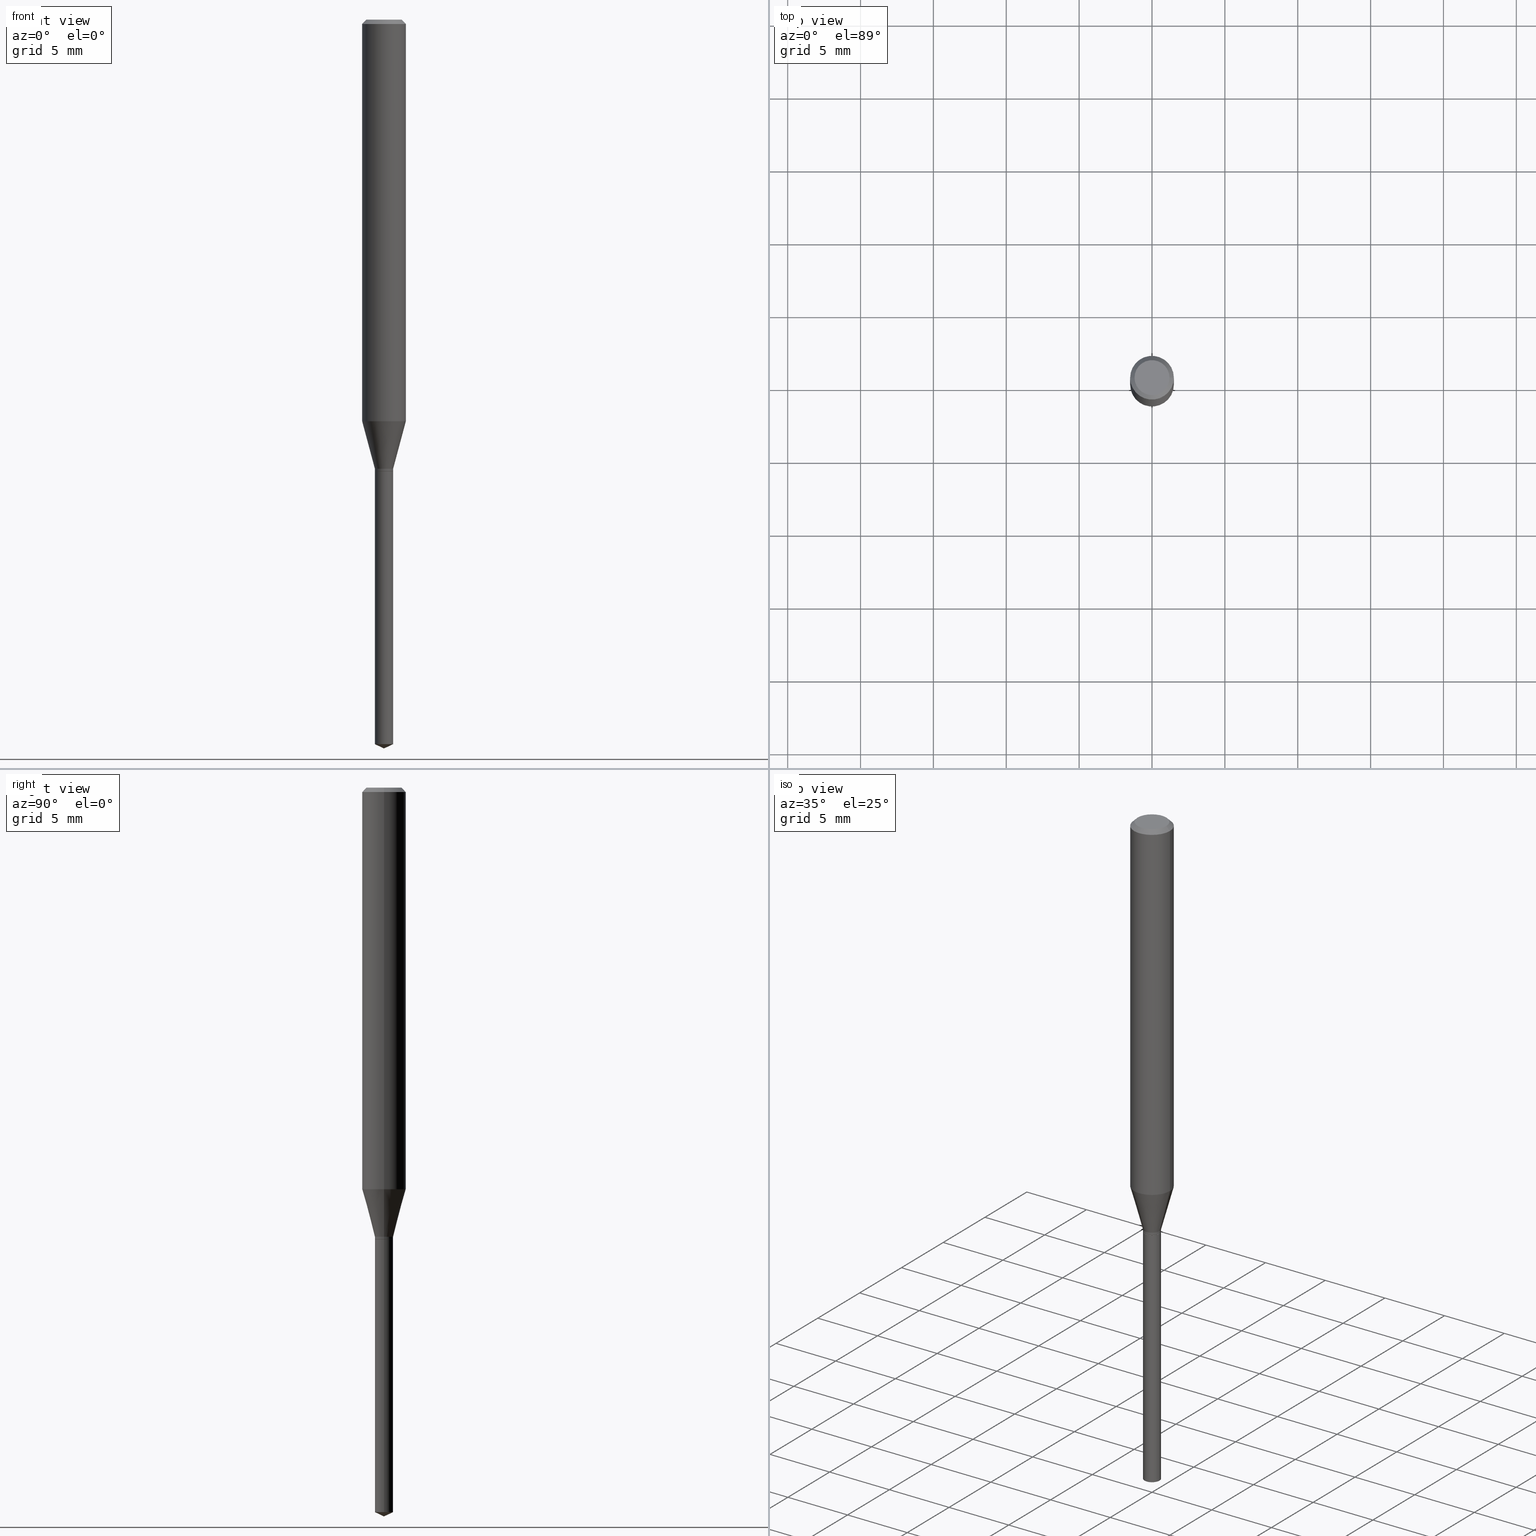
[diagram: canonical four-view strip — front | top / right | iso, engineering-drawing reading convention]
A machine part, canonical four-view strip (front | top / right | iso — engineering-drawing reading convention). The complete STEP part file that produces these views, byte-faithful:
ISO-10303-21;
HEADER;
FILE_DESCRIPTION (( 'STEP AP203' ),
    '1' );
FILE_NAME ('08157.STEP',
    '2024-04-24T13:25:48',
    ( '' ),
    ( '' ),
    'SwSTEP 2.0',
    'SolidWorks 2023',
    '' );
FILE_SCHEMA (( 'CONFIG_CONTROL_DESIGN' ));
ENDSEC;

DATA;
#1 = CARTESIAN_POINT ( 'NONE',  ( -9.146317137672921654E-28, 1.305851684738629534E-13, 37.40107874015748024 ) ) ;
#2 = LOCAL_TIME ( 9, 25, 48.00000000000000000, #206 ) ;
#3 = EDGE_CURVE ( 'NONE', #80, #181, #101, .T. ) ;
#4 = AXIS2_PLACEMENT_3D ( 'NONE', #317, #131, #209 ) ;
#5 = VECTOR ( 'NONE', #180, 39.37007874015747433 ) ;
#6 = EDGE_LOOP ( 'NONE', ( #225, #253, #186, #478 ) ) ;
#7 = LINE ( 'NONE', #452, #308 ) ;
#8 = CC_DESIGN_DATE_AND_TIME_ASSIGNMENT ( #56, #285, ( #230 ) ) ;
#9 = APPLICATION_CONTEXT ( 'configuration controlled 3d designs of mechanical parts and assemblies' ) ;
#10 = DIRECTION ( 'NONE',  ( -2.445468806185136597E-29, 3.491481338843145583E-15, 1.000000000000000000 ) ) ;
#11 = EDGE_CURVE ( 'NONE', #179, #45, #183, .T. ) ;
#12 =( CONVERSION_BASED_UNIT ( 'INCH', #200 ) LENGTH_UNIT ( ) NAMED_UNIT ( #91 ) );
#13 = AXIS2_PLACEMENT_3D ( 'NONE', #270, #376, #332 ) ;
#14 = ADVANCED_BREP_SHAPE_REPRESENTATION ( '08157', ( #199, #34, #293 ), #233 ) ;
#15 = APPROVAL ( #282, 'UNSPECIFIED' ) ;
#16 = PERSON_AND_ORGANIZATION_ROLE ( 'classification_officer' ) ;
#17 = CARTESIAN_POINT ( 'NONE',  ( 2.984694677948959472E-29, -4.261352974058059816E-15, -1.220500000000000140 ) ) ;
#18 = DIRECTION ( 'NONE',  ( -2.445468806185136597E-29, 3.491481338843145583E-15, 1.000000000000000000 ) ) ;
#19 = COORDINATED_UNIVERSAL_TIME_OFFSET ( 5, 0, .BEHIND. ) ;
#20 = CARTESIAN_POINT ( 'NONE',  ( 2.985917412352052273E-29, -4.263098714727481320E-15, -1.221000000000000085 ) ) ;
#21 = ORIENTED_EDGE ( 'NONE', *, *, #109, .T. ) ;
#22 = VECTOR ( 'NONE', #484, 39.37007874015748143 ) ;
#23 = APPROVAL_DATE_TIME ( #435, #90 ) ;
#24 = FACE_OUTER_BOUND ( 'NONE', #6, .T. ) ;
#25 = CARTESIAN_POINT ( 'NONE',  ( 4.132873053354867254E-48, -5.900647395337818946E-34, -1.690012582823346072E-19 ) ) ;
#26 = ADVANCED_FACE ( 'NONE', ( #284 ), #110, .T. ) ;
#27 = CYLINDRICAL_SURFACE ( 'NONE', #352, 0.05905000000000006771 ) ;
#28 = VECTOR ( 'NONE', #204, 39.37007874015747433 ) ;
#29 = AXIS2_PLACEMENT_3D ( 'NONE', #44, #280, #343 ) ;
#30 = CARTESIAN_POINT ( 'NONE',  ( 0.000000000000000000, 0.000000000000000000, 0.000000000000000000 ) ) ;
#31 = CARTESIAN_POINT ( 'NONE',  ( -0.05905000000000000526, 3.711095515056362547E-16, -0.01181000000000007738 ) ) ;
#32 = EDGE_LOOP ( 'NONE', ( #151, #490, #221 ) ) ;
#33 = CARTESIAN_POINT ( 'NONE',  ( 0.02460000000000001422, -4.409042634691123752E-15, -1.213600000000000012 ) ) ;
#34 = MANIFOLD_SOLID_BREP ( 'Body-Move/Copy2[2]', #279 ) ;
#35 = CC_DESIGN_PERSON_AND_ORGANIZATION_ASSIGNMENT ( #244, #125, ( #230 ) ) ;
#36 = ORIENTED_EDGE ( 'NONE', *, *, #394, .F. ) ;
#37 = VECTOR ( 'NONE', #364, 39.37007874015748854 ) ;
#38 = DIRECTION ( 'NONE',  ( -2.445468806185136597E-29, 3.491481338843145583E-15, 1.000000000000000000 ) ) ;
#39 = VECTOR ( 'NONE', #382, 39.37007874015748143 ) ;
#40 = CC_DESIGN_APPROVAL ( #381, ( #309 ) ) ;
#41 = VERTEX_POINT ( 'NONE', #468 ) ;
#42 = LINE ( 'NONE', #193, #213 ) ;
#43 = EDGE_LOOP ( 'NONE', ( #472, #155, #367, #449 ) ) ;
#44 = CARTESIAN_POINT ( 'NONE',  ( 2.985917412352052273E-29, -4.263098714727481320E-15, -1.221000000000000085 ) ) ;
#45 = VERTEX_POINT ( 'NONE', #357 ) ;
#46 = FACE_OUTER_BOUND ( 'NONE', #115, .T. ) ;
#47 = CC_DESIGN_DATE_AND_TIME_ASSIGNMENT ( #359, #167, ( #309 ) ) ;
#48 = AXIS2_PLACEMENT_3D ( 'NONE', #198, #242, #152 ) ;
#49 = DIRECTION ( 'NONE',  ( -2.445468806185136877E-29, 3.491481338843145188E-15, 1.000000000000000000 ) ) ;
#50 = EDGE_CURVE ( 'NONE', #77, #133, #62, .T. ) ;
#51 = APPROVAL_STATUS ( 'not_yet_approved' ) ;
#52 = CALENDAR_DATE ( 2024, 24, 4 ) ;
#53 = VECTOR ( 'NONE', #177, 39.37007874015748854 ) ;
#54 = APPROVAL_ROLE ( '' ) ;
#55 = DIRECTION ( 'NONE',  ( -0.7071067811865353603, 7.493145998870309984E-15, 0.7071067811865595631 ) ) ;
#56 = DATE_AND_TIME ( #52, #249 ) ;
#57 = CARTESIAN_POINT ( 'NONE',  ( -0.05905000000000000526, -1.495224193701643913E-15, -0.01181000000000007738 ) ) ;
#58 = ORIENTED_EDGE ( 'NONE', *, *, #399, .F. ) ;
#59 =( NAMED_UNIT ( * ) PLANE_ANGLE_UNIT ( ) SI_UNIT ( $, .RADIAN. ) );
#60 = LINE ( 'NONE', #395, #437 ) ;
#61 = VERTEX_POINT ( 'NONE', #464 ) ;
#62 = CIRCLE ( 'NONE', #457, 0.05905000000000013710 ) ;
#63 = AXIS2_PLACEMENT_3D ( 'NONE', #489, #150, #420 ) ;
#64 = DIRECTION ( 'NONE',  ( 1.000000000000000000, -6.982962677686266711E-15, 4.876185090822587894E-29 ) ) ;
#65 = EDGE_LOOP ( 'NONE', ( #296, #119, #446, #175 ) ) ;
#66 = CARTESIAN_POINT ( 'NONE',  ( 2.985917412352052273E-29, -4.263098714727481320E-15, -1.221000000000000085 ) ) ;
#67 = DIRECTION ( 'NONE',  ( 0.7071067811865453523, -7.319954787623248157E-15, -0.7071067811865496822 ) ) ;
#68 = ORIENTED_EDGE ( 'NONE', *, *, #165, .F. ) ;
#69 = EDGE_CURVE ( 'NONE', #181, #77, #434, .T. ) ;
#70 = AXIS2_PLACEMENT_3D ( 'NONE', #444, #112, #374 ) ;
#71 = DIRECTION ( 'NONE',  ( 1.000000000000000000, -6.982962677686276966E-15, 0.000000000000000000 ) ) ;
#72 = CC_DESIGN_SECURITY_CLASSIFICATION ( #309, ( #184 ) ) ;
#73 = VERTEX_POINT ( 'NONE', #423 ) ;
#74 = LINE ( 'NONE', #33, #5 ) ;
#75 = ORIENTED_EDGE ( 'NONE', *, *, #84, .T. ) ;
#76 = DIRECTION ( 'NONE',  ( -2.445468806185136597E-29, 3.491481338843145583E-15, 1.000000000000000000 ) ) ;
#77 = VERTEX_POINT ( 'NONE', #314 ) ;
#78 = CONICAL_SURFACE ( 'NONE', #4, 0.02460000000000001422, 0.2617993877991500740 ) ;
#79 = DIRECTION ( 'NONE',  ( -2.445468806185136877E-29, 3.491481338843145188E-15, 1.000000000000000000 ) ) ;
#80 = VERTEX_POINT ( 'NONE', #252 ) ;
#81 = EDGE_CURVE ( 'NONE', #77, #117, #60, .T. ) ;
#82 = LINE ( 'NONE', #236, #39 ) ;
#83 = ORIENTED_EDGE ( 'NONE', *, *, #134, .T. ) ;
#84 = EDGE_CURVE ( 'NONE', #415, #80, #356, .T. ) ;
#85 = CARTESIAN_POINT ( 'NONE',  ( 0.02460000000000001769, -1.717808818710822867E-16, 1.199539486845800937E-30 ) ) ;
#86 = CYLINDRICAL_SURFACE ( 'NONE', #48, 0.02460000000000000034 ) ;
#87 = AXIS2_PLACEMENT_3D ( 'NONE', #25, #126, #286 ) ;
#88 = AXIS2_PLACEMENT_3D ( 'NONE', #326, #105, #143 ) ;
#89 = FACE_OUTER_BOUND ( 'NONE', #263, .T. ) ;
#90 = APPROVAL ( #283, 'UNSPECIFIED' ) ;
#91 = DIMENSIONAL_EXPONENTS ( 1.000000000000000000, 0.000000000000000000, 0.000000000000000000, 0.000000000000000000, 0.000000000000000000, 0.000000000000000000, 0.000000000000000000 ) ;
#92 = MECHANICAL_CONTEXT ( 'NONE', #305, 'mechanical' ) ;
#93 = DIRECTION ( 'NONE',  ( -2.445468806185136597E-29, 3.491481338843145583E-15, 1.000000000000000000 ) ) ;
#94 = DIRECTION ( 'NONE',  ( -1.000000000000000000, 6.982962677686267499E-15, 0.000000000000000000 ) ) ;
#95 = DIRECTION ( 'NONE',  ( 1.000000000000000000, -6.982962677686264344E-15, 0.000000000000000000 ) ) ;
#96 = PERSON_AND_ORGANIZATION_ROLE ( 'design_supplier' ) ;
#97 = CARTESIAN_POINT ( 'NONE',  ( 2.985917412352052273E-29, -4.263098714727481320E-15, -1.221000000000000085 ) ) ;
#98 = UNCERTAINTY_MEASURE_WITH_UNIT (LENGTH_MEASURE( 1.000000000000000082E-05 ), #12, 'distance_accuracy_value', 'NONE');
#99 = ORIENTED_EDGE ( 'NONE', *, *, #391, .T. ) ;
#100 = PERSON_AND_ORGANIZATION_ROLE ( 'creator' ) ;
#101 = LINE ( 'NONE', #163, #407 ) ;
#102 = EDGE_CURVE ( 'NONE', #181, #365, #330, .T. ) ;
#103 = CIRCLE ( 'NONE', #400, 0.05905000000000013710 ) ;
#104 = CARTESIAN_POINT ( 'NONE',  ( 0.02409999999999999989, -4.431388115259720575E-15, -1.221000000000000085 ) ) ;
#105 = DIRECTION ( 'NONE',  ( -2.445468806185136597E-29, 3.491481338843145583E-15, 1.000000000000000000 ) ) ;
#106 = ORIENTED_EDGE ( 'NONE', *, *, #267, .F. ) ;
#107 = DIRECTION ( 'NONE',  ( -2.445468806185136597E-29, 3.491481338843145583E-15, 1.000000000000000000 ) ) ;
#108 = EDGE_LOOP ( 'NONE', ( #172, #451, #396, #417 ) ) ;
#109 = EDGE_CURVE ( 'NONE', #300, #41, #426, .T. ) ;
#110 = CONICAL_SURFACE ( 'NONE', #385, 0.05905000000000000526, 0.7853981633974452814 ) ;
#111 = AXIS2_PLACEMENT_3D ( 'NONE', #306, #277, #275 ) ;
#112 = DIRECTION ( 'NONE',  ( -2.445468806185136597E-29, 3.491481338843145583E-15, 1.000000000000000000 ) ) ;
#113 = PRODUCT_DEFINITION_SHAPE ( 'NONE', 'NONE',  #230 ) ;
#114 = CARTESIAN_POINT ( 'NONE',  ( 4.815128079378533515E-29, -6.874726756182153211E-15, -1.968999999999999861 ) ) ;
#115 = EDGE_LOOP ( 'NONE', ( #235, #375, #256, #370 ) ) ;
#116 = EDGE_CURVE ( 'NONE', #218, #231, #445, .T. ) ;
#117 = VERTEX_POINT ( 'NONE', #57 ) ;
#118 = FACE_OUTER_BOUND ( 'NONE', #333, .T. ) ;
#119 = ORIENTED_EDGE ( 'NONE', *, *, #50, .T. ) ;
#120 = FACE_OUTER_BOUND ( 'NONE', #324, .T. ) ;
#121 = EDGE_CURVE ( 'NONE', #61, #321, #220, .T. ) ;
#122 = CARTESIAN_POINT ( 'NONE',  ( 2.985917412352052273E-29, -4.263098714727481320E-15, -1.221000000000000085 ) ) ;
#123 = AXIS2_PLACEMENT_3D ( 'NONE', #190, #157, #311 ) ;
#124 = AXIS2_PLACEMENT_3D ( 'NONE', #292, #173, #71 ) ;
#125 = PERSON_AND_ORGANIZATION_ROLE ( 'creator' ) ;
#126 = DIRECTION ( 'NONE',  ( 2.438088387897960049E-29, -3.491481338843145188E-15, -1.000000000000000000 ) ) ;
#127 = PERSON_AND_ORGANIZATION ( #327, #422 ) ;
#128 = CARTESIAN_POINT ( 'NONE',  ( 4.787075694908793597E-29, -6.834675385811602288E-15, -1.957528831609387288 ) ) ;
#129 = ADVANCED_FACE ( 'NONE', ( #24 ), #78, .T. ) ;
#130 = APPLICATION_PROTOCOL_DEFINITION ( 'international standard', 'config_control_design', 1994, #9 ) ;
#131 = DIRECTION ( 'NONE',  ( -2.445468806185136597E-29, 3.491481338843145583E-15, 1.000000000000000000 ) ) ;
#132 = DIRECTION ( 'NONE',  ( -2.445468806185136597E-29, 3.491481338843145583E-15, 1.000000000000000000 ) ) ;
#133 = VERTEX_POINT ( 'NONE', #461 ) ;
#134 = EDGE_CURVE ( 'NONE', #300, #415, #351, .T. ) ;
#135 = CARTESIAN_POINT ( 'NONE',  ( 0.02409999999999999989, -4.431388115259720575E-15, -1.221000000000000085 ) ) ;
#136 = ADVANCED_FACE ( 'NONE', ( #318 ), #398, .F. ) ;
#137 = CARTESIAN_POINT ( 'NONE',  ( 0.02460000000000000034, -4.434879596598563582E-15, -1.221000000000000085 ) ) ;
#138 = CIRCLE ( 'NONE', #203, 0.02460000000000001769 ) ;
#139 = CONICAL_SURFACE ( 'NONE', #428, 0.02409999999999999989, 0.7853981633974311816 ) ;
#140 = FACE_OUTER_BOUND ( 'NONE', #346, .T. ) ;
#141 = ORIENTED_EDGE ( 'NONE', *, *, #197, .T. ) ;
#142 = CARTESIAN_POINT ( 'NONE',  ( -0.02460000000000000034, -5.374093537272557476E-15, -1.221000000000000085 ) ) ;
#143 = DIRECTION ( 'NONE',  ( 1.000000000000000000, -6.982962677686261977E-15, 0.000000000000000000 ) ) ;
#144 = ORIENTED_EDGE ( 'NONE', *, *, #480, .F. ) ;
#145 = CC_DESIGN_PERSON_AND_ORGANIZATION_ASSIGNMENT ( #208, #100, ( #184 ) ) ;
#146 = AXIS2_PLACEMENT_3D ( 'NONE', #348, #455, #379 ) ;
#147 = CARTESIAN_POINT ( 'NONE',  ( 2.653409096639165019E-29, -3.788364963724230266E-15, -1.085030849679252007 ) ) ;
#148 = FACE_OUTER_BOUND ( 'NONE', #486, .T. ) ;
#149 = ORIENTED_EDGE ( 'NONE', *, *, #288, .T. ) ;
#150 = DIRECTION ( 'NONE',  ( -2.445468806185136597E-29, 3.491481338843145583E-15, 1.000000000000000000 ) ) ;
#151 = ORIENTED_EDGE ( 'NONE', *, *, #187, .F. ) ;
#152 = DIRECTION ( 'NONE',  ( 1.000000000000000000, -6.982962677686281699E-15, 0.000000000000000000 ) ) ;
#153 = VECTOR ( 'NONE', #49, 39.37007874015748143 ) ;
#154 = ADVANCED_FACE ( 'NONE', ( #212 ), #360, .T. ) ;
#155 = ORIENTED_EDGE ( 'NONE', *, *, #3, .T. ) ;
#156 = FACE_OUTER_BOUND ( 'NONE', #215, .T. ) ;
#157 = DIRECTION ( 'NONE',  ( -2.445468806185136597E-29, 3.491481338843145583E-15, 1.000000000000000000 ) ) ;
#158 = AXIS2_PLACEMENT_3D ( 'NONE', #487, #278, #421 ) ;
#159 = DIRECTION ( 'NONE',  ( 0.000000000000000000, 0.000000000000000000, 1.000000000000000000 ) ) ;
#160 = DIRECTION ( 'NONE',  ( -2.445468806185136597E-29, 3.491481338843145583E-15, 1.000000000000000000 ) ) ;
#161 = DIRECTION ( 'NONE',  ( 1.000000000000000000, -6.982962677686261977E-15, 0.000000000000000000 ) ) ;
#162 = SECURITY_CLASSIFICATION_LEVEL ( 'unclassified' ) ;
#163 = CARTESIAN_POINT ( 'NONE',  ( -0.02460000000000001769, 1.747935129969847714E-16, -1.210058032202707759E-30 ) ) ;
#164 = VECTOR ( 'NONE', #55, 39.37007874015748854 ) ;
#165 = EDGE_CURVE ( 'NONE', #80, #41, #138, .T. ) ;
#166 = AXIS2_PLACEMENT_3D ( 'NONE', #1, #310, #238 ) ;
#167 = DATE_TIME_ROLE ( 'classification_date' ) ;
#168 = DIRECTION ( 'NONE',  ( -2.445468806185136597E-29, 3.491481338843145583E-15, 1.000000000000000000 ) ) ;
#169 = ORIENTED_EDGE ( 'NONE', *, *, #50, .F. ) ;
#170 = CC_DESIGN_PERSON_AND_ORGANIZATION_ASSIGNMENT ( #388, #96, ( #184 ) ) ;
#171 = CYLINDRICAL_SURFACE ( 'NONE', #369, 0.05905000000000006771 ) ;
#172 = ORIENTED_EDGE ( 'NONE', *, *, #210, .T. ) ;
#173 = DIRECTION ( 'NONE',  ( -2.445468806185136597E-29, 3.491481338843145583E-15, 1.000000000000000000 ) ) ;
#174 = LINE ( 'NONE', #114, #53 ) ;
#175 = ORIENTED_EDGE ( 'NONE', *, *, #288, .F. ) ;
#176 = DATE_AND_TIME ( #325, #223 ) ;
#177 = DIRECTION ( 'NONE',  ( 0.9063077870366547106, -4.853149677051446632E-15, 0.4226182617406894493 ) ) ;
#178 = CC_DESIGN_PERSON_AND_ORGANIZATION_ASSIGNMENT ( #127, #389, ( #217 ) ) ;
#179 = VERTEX_POINT ( 'NONE', #463 ) ;
#180 = DIRECTION ( 'NONE',  ( 0.2588190451025213501, 1.565188264969621968E-15, 0.9659258262890682012 ) ) ;
#181 = VERTEX_POINT ( 'NONE', #473 ) ;
#182 = EDGE_CURVE ( 'NONE', #321, #117, #368, .T. ) ;
#183 = CIRCLE ( 'NONE', #192, 0.02460000000000000034 ) ;
#184 = PRODUCT_DEFINITION_FORMATION_WITH_SPECIFIED_SOURCE ( 'ANY', '', #217, .NOT_KNOWN. ) ;
#185 = CARTESIAN_POINT ( 'NONE',  ( 0.000000000000000000, 0.000000000000000000, 0.000000000000000000 ) ) ;
#186 = ORIENTED_EDGE ( 'NONE', *, *, #210, .F. ) ;
#187 = EDGE_CURVE ( 'NONE', #189, #179, #174, .T. ) ;
#188 = CYLINDRICAL_SURFACE ( 'NONE', #123, 0.02460000000000001769 ) ;
#189 = VERTEX_POINT ( 'NONE', #229 ) ;
#190 = CARTESIAN_POINT ( 'NONE',  ( 0.000000000000000000, 0.000000000000000000, 0.000000000000000000 ) ) ;
#191 = ORIENTED_EDGE ( 'NONE', *, *, #109, .F. ) ;
#192 = AXIS2_PLACEMENT_3D ( 'NONE', #128, #132, #431 ) ;
#193 = CARTESIAN_POINT ( 'NONE',  ( 4.815128079378533515E-29, -6.874726756182153211E-15, -1.968999999999999861 ) ) ;
#194 = AXIS2_PLACEMENT_3D ( 'NONE', #262, #481, #264 ) ;
#195 = DESIGN_CONTEXT ( 'detailed design', #9, 'design' ) ;
#196 = CC_DESIGN_APPROVAL ( #90, ( #230 ) ) ;
#197 = EDGE_CURVE ( 'NONE', #321, #61, #458, .T. ) ;
#198 = CARTESIAN_POINT ( 'NONE',  ( 2.985917412352051713E-29, -4.263098714727481320E-15, -1.221000000000000085 ) ) ;
#199 = MANIFOLD_SOLID_BREP ( 'Body-Move/Copy2[1]', #336 ) ;
#200 = LENGTH_MEASURE_WITH_UNIT ( LENGTH_MEASURE( 0.02539999999999999897 ), #397 );
#201 = EDGE_CURVE ( 'NONE', #133, #73, #224, .T. ) ;
#202 = COORDINATED_UNIVERSAL_TIME_OFFSET ( 5, 0, .BEHIND. ) ;
#203 = AXIS2_PLACEMENT_3D ( 'NONE', #17, #160, #316 ) ;
#204 = DIRECTION ( 'NONE',  ( -0.2588190451025213501, 5.211531920934551042E-15, 0.9659258262890682012 ) ) ;
#205 = APPROVAL_PERSON_ORGANIZATION ( #392, #90, #54 ) ;
#206 = COORDINATED_UNIVERSAL_TIME_OFFSET ( 5, 0, .BEHIND. ) ;
#207 = DIRECTION ( 'NONE',  ( -2.445468806185136597E-29, 3.491481338843145583E-15, 1.000000000000000000 ) ) ;
#208 = PERSON_AND_ORGANIZATION ( #327, #422 ) ;
#209 = DIRECTION ( 'NONE',  ( 1.000000000000000000, -6.982962677686277755E-15, 0.000000000000000000 ) ) ;
#210 = EDGE_CURVE ( 'NONE', #133, #77, #103, .T. ) ;
#211 = CALENDAR_DATE ( 2024, 24, 4 ) ;
#212 = FACE_OUTER_BOUND ( 'NONE', #276, .T. ) ;
#213 = VECTOR ( 'NONE', #234, 39.37007874015748854 ) ;
#214 = CARTESIAN_POINT ( 'NONE',  ( 2.653409096639165019E-29, -3.788364963724230266E-15, -1.085030849679252007 ) ) ;
#215 = EDGE_LOOP ( 'NONE', ( #265, #419, #21, #68 ) ) ;
#216 = DIRECTION ( 'NONE',  ( -1.000000000000000000, 6.982962677686265922E-15, -4.876176775795935793E-29 ) ) ;
#217 = PRODUCT ( '08157', '08157', '', ( #92 ) ) ;
#218 = VERTEX_POINT ( 'NONE', #137 ) ;
#219 = PLANE ( 'NONE',  #453 ) ;
#220 = CIRCLE ( 'NONE', #232, 0.04724000000000000421 ) ;
#221 = ORIENTED_EDGE ( 'NONE', *, *, #11, .F. ) ;
#222 = CIRCLE ( 'NONE', #88, 0.02460000000000000034 ) ;
#223 = LOCAL_TIME ( 9, 25, 48.00000000000000000, #363 ) ;
#224 = LINE ( 'NONE', #413, #22 ) ;
#225 = ORIENTED_EDGE ( 'NONE', *, *, #424, .T. ) ;
#226 = DIRECTION ( 'NONE',  ( -0.7071067811865453523, 2.468850131082234184E-15, -0.7071067811865496822 ) ) ;
#227 = ADVANCED_FACE ( 'NONE', ( #403 ), #171, .T. ) ;
#228 = ORIENTED_EDGE ( 'NONE', *, *, #441, .T. ) ;
#229 = CARTESIAN_POINT ( 'NONE',  ( 4.815128079378533515E-29, -6.874726756182153211E-15, -1.968999999999999861 ) ) ;
#230 = PRODUCT_DEFINITION ( 'UNKNOWN', '', #184, #195 ) ;
#231 = VERTEX_POINT ( 'NONE', #142 ) ;
#232 = AXIS2_PLACEMENT_3D ( 'NONE', #255, #93, #64 ) ;
#233 =( GEOMETRIC_REPRESENTATION_CONTEXT ( 3 ) GLOBAL_UNCERTAINTY_ASSIGNED_CONTEXT ( ( #98 ) ) GLOBAL_UNIT_ASSIGNED_CONTEXT ( ( #12, #59, #462 ) ) REPRESENTATION_CONTEXT ( 'NONE', 'WORKASPACE' ) );
#234 = DIRECTION ( 'NONE',  ( -0.9063077870366547106, 7.915267918739013053E-15, 0.4226182617406894493 ) ) ;
#235 = ORIENTED_EDGE ( 'NONE', *, *, #391, .F. ) ;
#236 = CARTESIAN_POINT ( 'NONE',  ( 0.02460000000000000034, -4.434879596598563582E-15, -1.221000000000000085 ) ) ;
#237 = ORIENTED_EDGE ( 'NONE', *, *, #182, .T. ) ;
#238 = DIRECTION ( 'NONE',  ( 1.000000000000000000, -6.982962677686267499E-15, 0.000000000000000000 ) ) ;
#239 = AXIS2_PLACEMENT_3D ( 'NONE', #97, #18, #161 ) ;
#240 = DIRECTION ( 'NONE',  ( -2.438088387897960049E-29, 3.491481338843145188E-15, 1.000000000000000000 ) ) ;
#241 = EDGE_CURVE ( 'NONE', #41, #80, #274, .T. ) ;
#242 = DIRECTION ( 'NONE',  ( -2.445468806185136597E-29, 3.491481338843145583E-15, 1.000000000000000000 ) ) ;
#243 = ADVANCED_FACE ( 'NONE', ( #295 ), #27, .T. ) ;
#244 = PERSON_AND_ORGANIZATION ( #327, #422 ) ;
#245 = CARTESIAN_POINT ( 'NONE',  ( -0.02409999999999999989, -4.091857915409297102E-15, -1.221000000000000085 ) ) ;
#246 = DIRECTION ( 'NONE',  ( 1.000000000000000000, 0.000000000000000000, 0.000000000000000000 ) ) ;
#247 = DIRECTION ( 'NONE',  ( 2.445468806185136597E-29, -3.491481338843145583E-15, -1.000000000000000000 ) ) ;
#248 = AXIS2_PLACEMENT_3D ( 'NONE', #122, #240, #387 ) ;
#249 = LOCAL_TIME ( 9, 25, 48.00000000000000000, #350 ) ;
#250 = ADVANCED_FACE ( 'NONE', ( #140 ), #219, .F. ) ;
#251 = APPROVAL_DATE_TIME ( #429, #15 ) ;
#252 = CARTESIAN_POINT ( 'NONE',  ( -0.02460000000000001769, -4.074513850442065931E-15, -1.220500000000000140 ) ) ;
#253 = ORIENTED_EDGE ( 'NONE', *, *, #69, .T. ) ;
#254 = PERSON_AND_ORGANIZATION ( #327, #422 ) ;
#255 = CARTESIAN_POINT ( 'NONE',  ( 8.265746106709734507E-48, -1.180129479067563789E-33, -3.380025165646692144E-19 ) ) ;
#256 = ORIENTED_EDGE ( 'NONE', *, *, #480, .T. ) ;
#257 = DIRECTION ( 'NONE',  ( -2.445468806185136597E-29, 3.491481338843145583E-15, 1.000000000000000000 ) ) ;
#258 = CIRCLE ( 'NONE', #194, 0.05905000000000000526 ) ;
#259 = ORIENTED_EDGE ( 'NONE', *, *, #241, .F. ) ;
#260 = LINE ( 'NONE', #329, #465 ) ;
#261 = EDGE_CURVE ( 'NONE', #73, #117, #408, .T. ) ;
#262 = CARTESIAN_POINT ( 'NONE',  ( 2.888098660104665518E-31, -4.123439461173782112E-17, -0.01181000000000007738 ) ) ;
#263 = EDGE_LOOP ( 'NONE', ( #358, #99, #443, #144 ) ) ;
#264 = DIRECTION ( 'NONE',  ( 1.000000000000000000, -6.982962677686267499E-15, 0.000000000000000000 ) ) ;
#265 = ORIENTED_EDGE ( 'NONE', *, *, #84, .F. ) ;
#266 = APPROVAL_DATE_TIME ( #176, #381 ) ;
#267 = EDGE_CURVE ( 'NONE', #45, #179, #222, .T. ) ;
#268 = CARTESIAN_POINT ( 'NONE',  ( 0.000000000000000000, 0.000000000000000000, 0.000000000000000000 ) ) ;
#269 = ORIENTED_EDGE ( 'NONE', *, *, #102, .F. ) ;
#270 = CARTESIAN_POINT ( 'NONE',  ( 8.265746106709734507E-48, -1.180129479067563789E-33, -3.380025165646692144E-19 ) ) ;
#271 = EDGE_LOOP ( 'NONE', ( #83, #75, #259, #191 ) ) ;
#272 = ORIENTED_EDGE ( 'NONE', *, *, #116, .T. ) ;
#273 = VECTOR ( 'NONE', #226, 39.37007874015748143 ) ;
#274 = CIRCLE ( 'NONE', #124, 0.02460000000000001769 ) ;
#275 = DIRECTION ( 'NONE',  ( 1.000000000000000000, -6.982962677686280121E-15, 0.000000000000000000 ) ) ;
#276 = EDGE_LOOP ( 'NONE', ( #469, #304, #454, #169 ) ) ;
#277 = DIRECTION ( 'NONE',  ( -2.445468806185136597E-29, 3.491481338843145583E-15, 1.000000000000000000 ) ) ;
#278 = DIRECTION ( 'NONE',  ( -2.445468806185136597E-29, 3.491481338843145583E-15, 1.000000000000000000 ) ) ;
#279 = CLOSED_SHELL ( 'NONE', ( #342, #405, #227, #129, #432, #414, #154, #243, #26, #136, #402, #477 ) ) ;
#280 = DIRECTION ( 'NONE',  ( -2.445468806185136597E-29, 3.491481338843145583E-15, 1.000000000000000000 ) ) ;
#281 = AXIS2_PLACEMENT_3D ( 'NONE', #418, #38, #349 ) ;
#282 = APPROVAL_STATUS ( 'not_yet_approved' ) ;
#283 = APPROVAL_STATUS ( 'not_yet_approved' ) ;
#284 = FACE_OUTER_BOUND ( 'NONE', #380, .T. ) ;
#285 = DATE_TIME_ROLE ( 'creation_date' ) ;
#286 = DIRECTION ( 'NONE',  ( -1.000000000000000000, 6.982962677686265922E-15, -4.876176775795935793E-29 ) ) ;
#287 = CIRCLE ( 'NONE', #281, 0.02409999999999999989 ) ;
#288 = EDGE_CURVE ( 'NONE', #117, #73, #258, .T. ) ;
#289 = CARTESIAN_POINT ( 'NONE',  ( 2.888098660104665518E-31, -4.123439461173782112E-17, -0.01181000000000007738 ) ) ;
#290 = APPROVAL_ROLE ( '' ) ;
#291 = DIRECTION ( 'NONE',  ( 1.000000000000000000, -6.982962677686280121E-15, 0.000000000000000000 ) ) ;
#292 = CARTESIAN_POINT ( 'NONE',  ( 2.984694677948959472E-29, -4.261352974058059816E-15, -1.220500000000000140 ) ) ;
#293 = AXIS2_PLACEMENT_3D ( 'NONE', #315, #159, #246 ) ;
#294 = ORIENTED_EDGE ( 'NONE', *, *, #121, .F. ) ;
#295 = FACE_OUTER_BOUND ( 'NONE', #65, .T. ) ;
#296 = ORIENTED_EDGE ( 'NONE', *, *, #81, .F. ) ;
#297 = DIRECTION ( 'NONE',  ( 2.438088387897960049E-29, -3.491481338843145188E-15, -1.000000000000000000 ) ) ;
#298 = FACE_OUTER_BOUND ( 'NONE', #32, .T. ) ;
#299 = AXIS2_PLACEMENT_3D ( 'NONE', #20, #168, #291 ) ;
#300 = VERTEX_POINT ( 'NONE', #104 ) ;
#301 = CARTESIAN_POINT ( 'NONE',  ( -0.04724000000000000421, 3.504923541997677355E-16, -3.380025165670481712E-19 ) ) ;
#302 = ORIENTED_EDGE ( 'NONE', *, *, #377, .T. ) ;
#303 = CYLINDRICAL_SURFACE ( 'NONE', #347, 0.02460000000000001769 ) ;
#304 = ORIENTED_EDGE ( 'NONE', *, *, #102, .T. ) ;
#305 = APPLICATION_CONTEXT ( 'configuration controlled 3d designs of mechanical parts and assemblies' ) ;
#306 = CARTESIAN_POINT ( 'NONE',  ( 2.985917412352052273E-29, -4.263098714727481320E-15, -1.221000000000000085 ) ) ;
#307 = ORIENTED_EDGE ( 'NONE', *, *, #134, .F. ) ;
#308 = VECTOR ( 'NONE', #79, 39.37007874015748143 ) ;
#309 = SECURITY_CLASSIFICATION ( '', '', #162 ) ;
#310 = DIRECTION ( 'NONE',  ( -2.445468806185136597E-29, 3.491481338843145583E-15, 1.000000000000000000 ) ) ;
#311 = DIRECTION ( 'NONE',  ( 1.000000000000000000, -6.982962677686266711E-15, 4.876176775795935232E-29 ) ) ;
#312 = CYLINDRICAL_SURFACE ( 'NONE', #63, 0.02460000000000000034 ) ;
#313 = CONICAL_SURFACE ( 'NONE', #70, 84.42940631927639572, 1.134464013796325332 ) ;
#314 = CARTESIAN_POINT ( 'NONE',  ( -0.05905000000000013710, -3.368789478257890773E-15, -1.085030849679252007 ) ) ;
#315 = CARTESIAN_POINT ( 'NONE',  ( 0.000000000000000000, 0.000000000000000000, 0.000000000000000000 ) ) ;
#316 = DIRECTION ( 'NONE',  ( 1.000000000000000000, -6.982962677686276966E-15, 0.000000000000000000 ) ) ;
#317 = CARTESIAN_POINT ( 'NONE',  ( 2.967820943186281838E-29, -4.237261752820041489E-15, -1.213600000000000012 ) ) ;
#318 = FACE_OUTER_BOUND ( 'NONE', #341, .T. ) ;
#319 = CONICAL_SURFACE ( 'NONE', #111, 0.02409999999999999989, 0.7853981633974311816 ) ;
#320 = PRODUCT_RELATED_PRODUCT_CATEGORY ( 'detail', '', ( #217 ) ) ;
#321 = VERTEX_POINT ( 'NONE', #301 ) ;
#322 = PERSON_AND_ORGANIZATION ( #327, #422 ) ;
#323 = DIRECTION ( 'NONE',  ( -2.445468806185136877E-29, 3.491481338843145188E-15, 1.000000000000000000 ) ) ;
#324 = EDGE_LOOP ( 'NONE', ( #36, #338, #106 ) ) ;
#325 = CALENDAR_DATE ( 2024, 24, 4 ) ;
#326 = CARTESIAN_POINT ( 'NONE',  ( 4.787075694908793597E-29, -6.834675385811602288E-15, -1.957528831609387288 ) ) ;
#327 = PERSON ( 'UNSPECIFIED', 'UNSPECIFIED', 'UNSPECIFIED', ('UNSPECIFIED'), ('UNSPECIFIED'), ('UNSPECIFIED') ) ;
#328 = SHAPE_DEFINITION_REPRESENTATION ( #113, #14 ) ;
#329 = CARTESIAN_POINT ( 'NONE',  ( 0.05905000000000000526, -4.463468013801467941E-16, -0.01181000000000007738 ) ) ;
#330 = CIRCLE ( 'NONE', #427, 0.02460000000000001422 ) ;
#331 = CIRCLE ( 'NONE', #29, 0.02460000000000000034 ) ;
#332 = DIRECTION ( 'NONE',  ( 1.000000000000000000, -6.982962677686266711E-15, 4.876185090822587894E-29 ) ) ;
#333 = EDGE_LOOP ( 'NONE', ( #409, #439, #302, #269 ) ) ;
#334 = DIRECTION ( 'NONE',  ( -2.445468806185136597E-29, 3.491481338843145583E-15, 1.000000000000000000 ) ) ;
#335 = LINE ( 'NONE', #85, #153 ) ;
#336 = CLOSED_SHELL ( 'NONE', ( #447, #362, #483, #460, #250 ) ) ;
#337 = CONICAL_SURFACE ( 'NONE', #146, 0.05905000000000000526, 0.7853981633974452814 ) ;
#338 = ORIENTED_EDGE ( 'NONE', *, *, #187, .T. ) ;
#339 = AXIS2_PLACEMENT_3D ( 'NONE', #442, #107, #366 ) ;
#340 = PLANE ( 'NONE',  #248 ) ;
#341 = EDGE_LOOP ( 'NONE', ( #141, #482 ) ) ;
#342 = ADVANCED_FACE ( 'NONE', ( #371 ), #139, .T. ) ;
#343 = DIRECTION ( 'NONE',  ( 1.000000000000000000, -6.982962677686261977E-15, 0.000000000000000000 ) ) ;
#344 = ORIENTED_EDGE ( 'NONE', *, *, #261, .T. ) ;
#345 = FACE_OUTER_BOUND ( 'NONE', #488, .T. ) ;
#346 = EDGE_LOOP ( 'NONE', ( #272, #228 ) ) ;
#347 = AXIS2_PLACEMENT_3D ( 'NONE', #185, #10, #384 ) ;
#348 = CARTESIAN_POINT ( 'NONE',  ( 2.888098660104665518E-31, -4.123439461173782112E-17, -0.01181000000000007738 ) ) ;
#349 = DIRECTION ( 'NONE',  ( 1.000000000000000000, -6.982962677686280121E-15, 0.000000000000000000 ) ) ;
#350 = COORDINATED_UNIVERSAL_TIME_OFFSET ( 5, 0, .BEHIND. ) ;
#351 = CIRCLE ( 'NONE', #299, 0.02409999999999999989 ) ;
#352 = AXIS2_PLACEMENT_3D ( 'NONE', #30, #76, #406 ) ;
#353 = CALENDAR_DATE ( 2024, 24, 4 ) ;
#354 = DIRECTION ( 'NONE',  ( -2.445468806185136597E-29, 3.491481338843145583E-15, 1.000000000000000000 ) ) ;
#355 = EDGE_CURVE ( 'NONE', #61, #73, #260, .T. ) ;
#356 = LINE ( 'NONE', #245, #164 ) ;
#357 = CARTESIAN_POINT ( 'NONE',  ( -0.02460000000000000034, -6.659881872814617171E-15, -1.957528831609387288 ) ) ;
#358 = ORIENTED_EDGE ( 'NONE', *, *, #11, .T. ) ;
#359 = DATE_AND_TIME ( #211, #2 ) ;
#360 = CONICAL_SURFACE ( 'NONE', #416, 0.02460000000000001422, 0.2617993877991500740 ) ;
#361 = CARTESIAN_POINT ( 'NONE',  ( 2.967820943186281838E-29, -4.237261752820041489E-15, -1.213600000000000012 ) ) ;
#362 = ADVANCED_FACE ( 'NONE', ( #298 ), #313, .T. ) ;
#363 = COORDINATED_UNIVERSAL_TIME_OFFSET ( 5, 0, .BEHIND. ) ;
#364 = DIRECTION ( 'NONE',  ( 0.7071067811865353603, -2.468850131082130054E-15, 0.7071067811865595631 ) ) ;
#365 = VERTEX_POINT ( 'NONE', #411 ) ;
#366 = DIRECTION ( 'NONE',  ( 1.000000000000000000, -6.982962677686267499E-15, 0.000000000000000000 ) ) ;
#367 = ORIENTED_EDGE ( 'NONE', *, *, #424, .F. ) ;
#368 = LINE ( 'NONE', #31, #273 ) ;
#369 = AXIS2_PLACEMENT_3D ( 'NONE', #268, #440, #404 ) ;
#370 = ORIENTED_EDGE ( 'NONE', *, *, #441, .F. ) ;
#371 = FACE_OUTER_BOUND ( 'NONE', #271, .T. ) ;
#372 = EDGE_CURVE ( 'NONE', #365, #133, #74, .T. ) ;
#373 = ORIENTED_EDGE ( 'NONE', *, *, #197, .F. ) ;
#374 = DIRECTION ( 'NONE',  ( 1.000000000000000000, -6.982962677686267499E-15, 0.000000000000000000 ) ) ;
#375 = ORIENTED_EDGE ( 'NONE', *, *, #267, .T. ) ;
#376 = DIRECTION ( 'NONE',  ( -2.445468806185136597E-29, 3.491481338843145583E-15, 1.000000000000000000 ) ) ;
#377 = EDGE_CURVE ( 'NONE', #41, #365, #335, .T. ) ;
#378 = CC_DESIGN_APPROVAL ( #15, ( #184 ) ) ;
#379 = DIRECTION ( 'NONE',  ( -1.000000000000000000, 6.982962677686267499E-15, 0.000000000000000000 ) ) ;
#380 = EDGE_LOOP ( 'NONE', ( #383, #373, #237, #149 ) ) ;
#381 = APPROVAL ( #51, 'UNSPECIFIED' ) ;
#382 = DIRECTION ( 'NONE',  ( -2.445468806185136877E-29, 3.491481338843145188E-15, 1.000000000000000000 ) ) ;
#383 = ORIENTED_EDGE ( 'NONE', *, *, #355, .F. ) ;
#384 = DIRECTION ( 'NONE',  ( 1.000000000000000000, -6.982962677686266711E-15, 4.876176775795935232E-29 ) ) ;
#385 = AXIS2_PLACEMENT_3D ( 'NONE', #289, #247, #94 ) ;
#386 = CONICAL_SURFACE ( 'NONE', #166, 84.42940631927639572, 1.134464013796325332 ) ;
#387 = DIRECTION ( 'NONE',  ( 1.000000000000000000, -6.982962677686265922E-15, 4.876176775795935793E-29 ) ) ;
#388 = PERSON_AND_ORGANIZATION ( #327, #422 ) ;
#389 = PERSON_AND_ORGANIZATION_ROLE ( 'design_owner' ) ;
#390 = DIRECTION ( 'NONE',  ( 1.000000000000000000, -6.982962677686277755E-15, 0.000000000000000000 ) ) ;
#391 = EDGE_CURVE ( 'NONE', #45, #231, #7, .T. ) ;
#392 = PERSON_AND_ORGANIZATION ( #327, #422 ) ;
#393 = CARTESIAN_POINT ( 'NONE',  ( -0.02460000000000001422, -4.062468239823057162E-15, -1.213600000000000012 ) ) ;
#394 = EDGE_CURVE ( 'NONE', #189, #45, #42, .T. ) ;
#395 = CARTESIAN_POINT ( 'NONE',  ( -0.05905000000000006771, 4.195754854663396409E-16, -2.904631170795525045E-30 ) ) ;
#396 = ORIENTED_EDGE ( 'NONE', *, *, #261, .F. ) ;
#397 =( LENGTH_UNIT ( ) NAMED_UNIT ( * ) SI_UNIT ( $, .METRE. ) );
#398 = PLANE ( 'NONE',  #87 ) ;
#399 = EDGE_CURVE ( 'NONE', #415, #300, #287, .T. ) ;
#400 = AXIS2_PLACEMENT_3D ( 'NONE', #147, #476, #479 ) ;
#401 = CARTESIAN_POINT ( 'NONE',  ( 2.967820943186281838E-29, -4.237261752820041489E-15, -1.213600000000000012 ) ) ;
#402 = ADVANCED_FACE ( 'NONE', ( #345 ), #340, .F. ) ;
#403 = FACE_OUTER_BOUND ( 'NONE', #108, .T. ) ;
#404 = DIRECTION ( 'NONE',  ( 1.000000000000000000, -6.982962677686266711E-15, 4.876176775795936353E-29 ) ) ;
#405 = ADVANCED_FACE ( 'NONE', ( #148 ), #337, .T. ) ;
#406 = DIRECTION ( 'NONE',  ( 1.000000000000000000, -6.982962677686266711E-15, 4.876176775795936353E-29 ) ) ;
#407 = VECTOR ( 'NONE', #323, 39.37007874015748143 ) ;
#408 = CIRCLE ( 'NONE', #339, 0.05905000000000000526 ) ;
#409 = ORIENTED_EDGE ( 'NONE', *, *, #3, .F. ) ;
#410 = CC_DESIGN_PERSON_AND_ORGANIZATION_ASSIGNMENT ( #254, #16, ( #309 ) ) ;
#411 = CARTESIAN_POINT ( 'NONE',  ( 0.02460000000000001422, -4.409042634691123752E-15, -1.213600000000000012 ) ) ;
#412 = ORIENTED_EDGE ( 'NONE', *, *, #355, .T. ) ;
#413 = CARTESIAN_POINT ( 'NONE',  ( 0.05905000000000006771, -4.123439461173745257E-16, 2.879382386107503723E-30 ) ) ;
#414 = ADVANCED_FACE ( 'NONE', ( #118 ), #303, .T. ) ;
#415 = VERTEX_POINT ( 'NONE', #456 ) ;
#416 = AXIS2_PLACEMENT_3D ( 'NONE', #361, #354, #390 ) ;
#417 = ORIENTED_EDGE ( 'NONE', *, *, #201, .F. ) ;
#418 = CARTESIAN_POINT ( 'NONE',  ( 2.985917412352052273E-29, -4.263098714727481320E-15, -1.221000000000000085 ) ) ;
#419 = ORIENTED_EDGE ( 'NONE', *, *, #399, .T. ) ;
#420 = DIRECTION ( 'NONE',  ( 1.000000000000000000, -6.982962677686281699E-15, 0.000000000000000000 ) ) ;
#421 = DIRECTION ( 'NONE',  ( 1.000000000000000000, -6.982962677686277755E-15, 0.000000000000000000 ) ) ;
#422 = ORGANIZATION ( 'UNSPECIFIED', 'UNSPECIFIED', '' ) ;
#423 = CARTESIAN_POINT ( 'NONE',  ( 0.05905000000000000526, -4.535783407291119586E-16, -0.01181000000000007738 ) ) ;
#424 = EDGE_CURVE ( 'NONE', #365, #181, #485, .T. ) ;
#425 = APPROVAL_ROLE ( '' ) ;
#426 = LINE ( 'NONE', #135, #37 ) ;
#427 = AXIS2_PLACEMENT_3D ( 'NONE', #401, #207, #471 ) ;
#428 = AXIS2_PLACEMENT_3D ( 'NONE', #66, #334, #448 ) ;
#429 = DATE_AND_TIME ( #353, #459 ) ;
#430 = APPROVAL_PERSON_ORGANIZATION ( #322, #381, #425 ) ;
#431 = DIRECTION ( 'NONE',  ( 1.000000000000000000, -6.982962677686261977E-15, 0.000000000000000000 ) ) ;
#432 = ADVANCED_FACE ( 'NONE', ( #450 ), #188, .T. ) ;
#433 = CALENDAR_DATE ( 2024, 24, 4 ) ;
#434 = LINE ( 'NONE', #393, #28 ) ;
#435 = DATE_AND_TIME ( #433, #475 ) ;
#436 = DIRECTION ( 'NONE',  ( -2.445468806185136877E-29, 3.491481338843145188E-15, 1.000000000000000000 ) ) ;
#437 = VECTOR ( 'NONE', #436, 39.37007874015748143 ) ;
#438 = CARTESIAN_POINT ( 'NONE',  ( -1.748284892778405421E-29, -1.104274586973574479E-14, -1.221000000000000085 ) ) ;
#439 = ORIENTED_EDGE ( 'NONE', *, *, #165, .T. ) ;
#440 = DIRECTION ( 'NONE',  ( -2.445468806185136597E-29, 3.491481338843145583E-15, 1.000000000000000000 ) ) ;
#441 = EDGE_CURVE ( 'NONE', #231, #218, #331, .T. ) ;
#442 = CARTESIAN_POINT ( 'NONE',  ( 2.888098660104665518E-31, -4.123439461173782112E-17, -0.01181000000000007738 ) ) ;
#443 = ORIENTED_EDGE ( 'NONE', *, *, #116, .F. ) ;
#444 = CARTESIAN_POINT ( 'NONE',  ( -9.146317137672921654E-28, 1.305851684738629534E-13, 37.40107874015748024 ) ) ;
#445 = CIRCLE ( 'NONE', #239, 0.02460000000000000034 ) ;
#446 = ORIENTED_EDGE ( 'NONE', *, *, #201, .T. ) ;
#447 = ADVANCED_FACE ( 'NONE', ( #89 ), #86, .T. ) ;
#448 = DIRECTION ( 'NONE',  ( 1.000000000000000000, -6.982962677686280121E-15, 0.000000000000000000 ) ) ;
#449 = ORIENTED_EDGE ( 'NONE', *, *, #377, .F. ) ;
#450 = FACE_OUTER_BOUND ( 'NONE', #43, .T. ) ;
#451 = ORIENTED_EDGE ( 'NONE', *, *, #81, .T. ) ;
#452 = CARTESIAN_POINT ( 'NONE',  ( -0.02460000000000000034, -4.088305201730496204E-15, -1.221000000000000085 ) ) ;
#453 = AXIS2_PLACEMENT_3D ( 'NONE', #438, #297, #216 ) ;
#454 = ORIENTED_EDGE ( 'NONE', *, *, #372, .T. ) ;
#455 = DIRECTION ( 'NONE',  ( 2.445468806185136597E-29, -3.491481338843145583E-15, -1.000000000000000000 ) ) ;
#456 = CARTESIAN_POINT ( 'NONE',  ( -0.02409999999999999989, -4.089208688235185901E-15, -1.221000000000000085 ) ) ;
#457 = AXIS2_PLACEMENT_3D ( 'NONE', #214, #257, #95 ) ;
#458 = CIRCLE ( 'NONE', #13, 0.04724000000000000421 ) ;
#459 = LOCAL_TIME ( 9, 25, 48.00000000000000000, #202 ) ;
#460 = ADVANCED_FACE ( 'NONE', ( #46 ), #312, .T. ) ;
#461 = CARTESIAN_POINT ( 'NONE',  ( 0.05905000000000013710, -4.200708909841605975E-15, -1.085030849679252007 ) ) ;
#462 =( NAMED_UNIT ( * ) SI_UNIT ( $, .STERADIAN. ) SOLID_ANGLE_UNIT ( ) );
#463 = CARTESIAN_POINT ( 'NONE',  ( 0.02460000000000000034, -7.006456267682684550E-15, -1.957528831609387288 ) ) ;
#464 = CARTESIAN_POINT ( 'NONE',  ( 0.04724000000000000421, -3.852183633974369838E-16, -3.380025165621689721E-19 ) ) ;
#465 = VECTOR ( 'NONE', #67, 39.37007874015748143 ) ;
#466 = APPLICATION_PROTOCOL_DEFINITION ( 'international standard', 'config_control_design', 1994, #305 ) ;
#467 = APPROVAL_PERSON_ORGANIZATION ( #470, #15, #290 ) ;
#468 = CARTESIAN_POINT ( 'NONE',  ( 0.02460000000000001769, -4.433133855929142079E-15, -1.220500000000000140 ) ) ;
#469 = ORIENTED_EDGE ( 'NONE', *, *, #69, .F. ) ;
#470 = PERSON_AND_ORGANIZATION ( #327, #422 ) ;
#471 = DIRECTION ( 'NONE',  ( 1.000000000000000000, -6.982962677686277755E-15, 0.000000000000000000 ) ) ;
#472 = ORIENTED_EDGE ( 'NONE', *, *, #241, .T. ) ;
#473 = CARTESIAN_POINT ( 'NONE',  ( -0.02460000000000001422, -4.074513850442065931E-15, -1.213600000000000012 ) ) ;
#474 = ORIENTED_EDGE ( 'NONE', *, *, #182, .F. ) ;
#475 = LOCAL_TIME ( 9, 25, 48.00000000000000000, #19 ) ;
#476 = DIRECTION ( 'NONE',  ( -2.445468806185136597E-29, 3.491481338843145583E-15, 1.000000000000000000 ) ) ;
#477 = ADVANCED_FACE ( 'NONE', ( #156 ), #319, .T. ) ;
#478 = ORIENTED_EDGE ( 'NONE', *, *, #372, .F. ) ;
#479 = DIRECTION ( 'NONE',  ( 1.000000000000000000, -6.982962677686264344E-15, 0.000000000000000000 ) ) ;
#480 = EDGE_CURVE ( 'NONE', #179, #218, #82, .T. ) ;
#481 = DIRECTION ( 'NONE',  ( -2.445468806185136597E-29, 3.491481338843145583E-15, 1.000000000000000000 ) ) ;
#482 = ORIENTED_EDGE ( 'NONE', *, *, #121, .T. ) ;
#483 = ADVANCED_FACE ( 'NONE', ( #120 ), #386, .T. ) ;
#484 = DIRECTION ( 'NONE',  ( -2.445468806185136877E-29, 3.491481338843145188E-15, 1.000000000000000000 ) ) ;
#485 = CIRCLE ( 'NONE', #158, 0.02460000000000001422 ) ;
#486 = EDGE_LOOP ( 'NONE', ( #294, #412, #344, #474 ) ) ;
#487 = CARTESIAN_POINT ( 'NONE',  ( 2.967820943186281838E-29, -4.237261752820041489E-15, -1.213600000000000012 ) ) ;
#488 = EDGE_LOOP ( 'NONE', ( #307, #58 ) ) ;
#489 = CARTESIAN_POINT ( 'NONE',  ( 2.985917412352051713E-29, -4.263098714727481320E-15, -1.221000000000000085 ) ) ;
#490 = ORIENTED_EDGE ( 'NONE', *, *, #394, .T. ) ;
ENDSEC;
END-ISO-10303-21;
